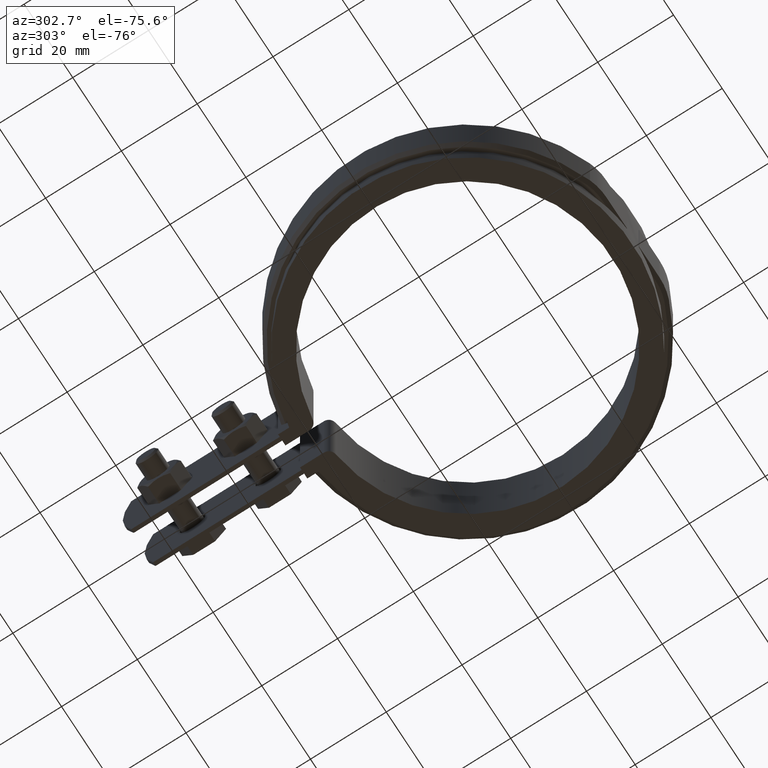
[diagram: clean part render]
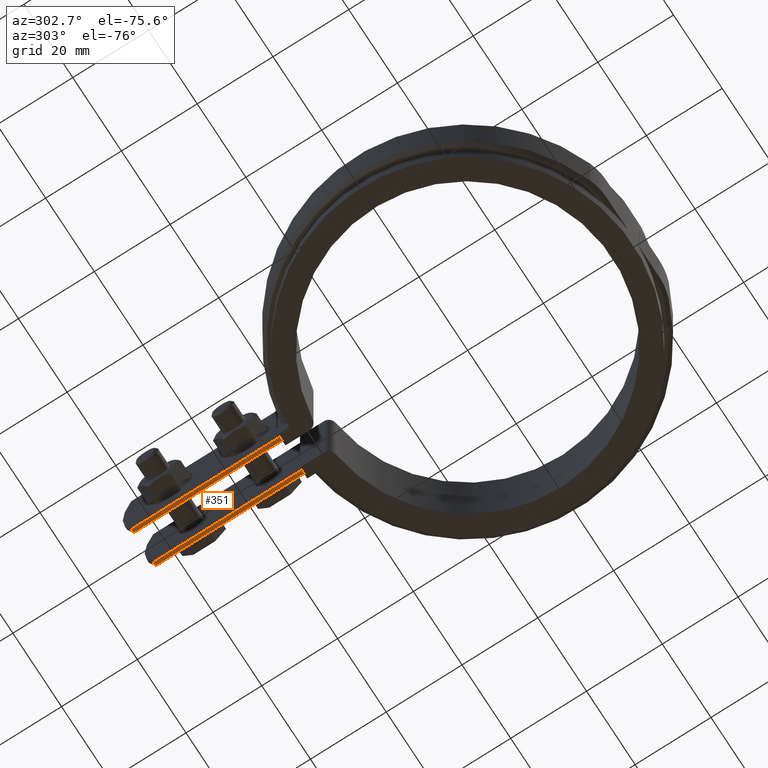
[diagram: same view with one face highlighted and labeled with its STEP entity id]
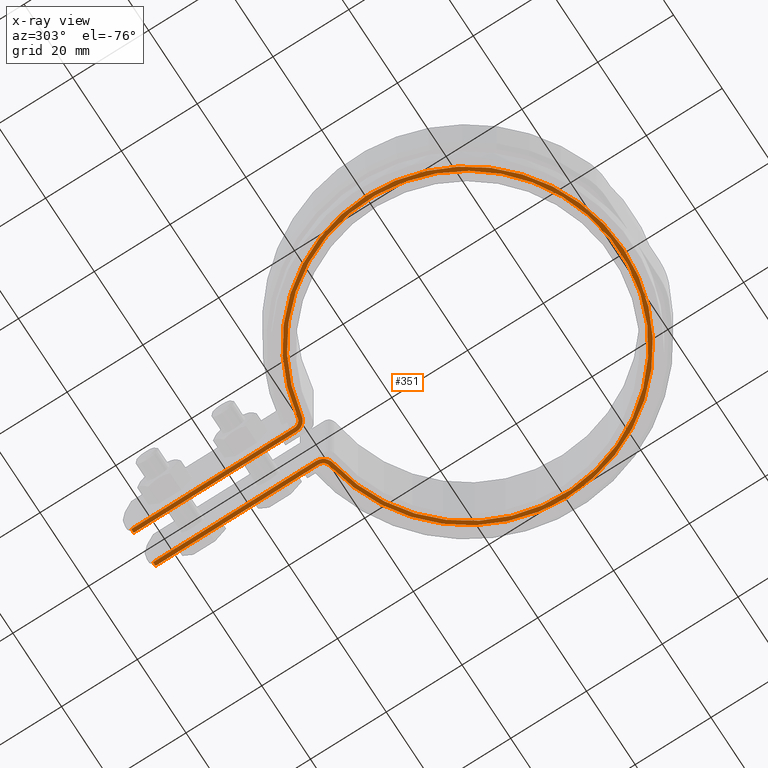
[diagram: x-ray of the same camera — body ghosted, the highlighted face saturated]
A machine part, auxiliary view. The second image highlights one B-rep face of the part: STEP entity #351.
The next image is the same camera in x-ray: the body ghosted, the highlighted face saturated — about 0% of this face is hidden behind the body in this view.
In plain terms, the highlighted planar face has unit normal (0, 0, -1).
Its self-contained STEP definition (entity closure, byte-faithful):
#351 = ADVANCED_FACE( '', ( #590 ), #591, .T. );
#590 = FACE_OUTER_BOUND( '', #1264, .T. );
#591 = PLANE( '', #1265 );
#1264 = EDGE_LOOP( '', ( #2560, #2561, #2562, #2563, #2564, #2565, #2566, #2567, #2568, #2569, #2570, #2571 ) );
#1265 = AXIS2_PLACEMENT_3D( '', #2572, #2573, #2574 );
#2560 = ORIENTED_EDGE( '', *, *, #3954, .F. );
#2561 = ORIENTED_EDGE( '', *, *, #4060, .T. );
#2562 = ORIENTED_EDGE( '', *, *, #4051, .F. );
#2563 = ORIENTED_EDGE( '', *, *, #4059, .F. );
#2564 = ORIENTED_EDGE( '', *, *, #3981, .F. );
#2565 = ORIENTED_EDGE( '', *, *, #4056, .F. );
#2566 = ORIENTED_EDGE( '', *, *, #3949, .F. );
#2567 = ORIENTED_EDGE( '', *, *, #4070, .T. );
#2568 = ORIENTED_EDGE( '', *, *, #4044, .F. );
#2569 = ORIENTED_EDGE( '', *, *, #4062, .F. );
#2570 = ORIENTED_EDGE( '', *, *, #4020, .F. );
#2571 = ORIENTED_EDGE( '', *, *, #4071, .F. );
#2572 = CARTESIAN_POINT( '', ( -7.00000000000000, 42.5784276365391, -12.5000000000000 ) );
#2573 = DIRECTION( '', ( 0.000000000000000, 0.000000000000000, -1.00000000000000 ) );
#2574 = DIRECTION( '', ( 1.00000000000000, -6.16283340149655E-017, 0.000000000000000 ) );
#3949 = EDGE_CURVE( '', #4445, #4440, #4447, .T. );
#3954 = EDGE_CURVE( '', #4455, #4457, #4458, .T. );
#3981 = EDGE_CURVE( '', #4507, #4509, #4510, .T. );
#4020 = EDGE_CURVE( '', #4583, #4585, #4586, .T. );
#4044 = EDGE_CURVE( '', #4616, #4618, #4619, .T. );
#4051 = EDGE_CURVE( '', #4630, #4632, #4633, .T. );
#4056 = EDGE_CURVE( '', #4440, #4507, #4640, .T. );
#4059 = EDGE_CURVE( '', #4509, #4630, #4643, .T. );
#4060 = EDGE_CURVE( '', #4455, #4632, #4644, .T. );
#4062 = EDGE_CURVE( '', #4585, #4616, #4646, .T. );
#4070 = EDGE_CURVE( '', #4445, #4618, #4654, .T. );
#4071 = EDGE_CURVE( '', #4457, #4583, #4655, .T. );
#4440 = VERTEX_POINT( '', #5262 );
#4445 = VERTEX_POINT( '', #5269 );
#4447 = LINE( '', #5271, #5272 );
#4455 = VERTEX_POINT( '', #5289 );
#4457 = VERTEX_POINT( '', #5291 );
#4458 = LINE( '', #5292, #5293 );
#4507 = VERTEX_POINT( '', #5508 );
#4509 = VERTEX_POINT( '', #5511 );
#4510 = CIRCLE( '', #5512, 40.1500000000000 );
#4583 = VERTEX_POINT( '', #6141 );
#4585 = VERTEX_POINT( '', #6144 );
#4586 = CIRCLE( '', #6145, 41.1500000000000 );
#4616 = VERTEX_POINT( '', #6379 );
#4618 = VERTEX_POINT( '', #6382 );
#4619 = LINE( '', #6383, #6384 );
#4630 = VERTEX_POINT( '', #6397 );
#4632 = VERTEX_POINT( '', #6400 );
#4633 = LINE( '', #6401, #6402 );
#4640 = CIRCLE( '', #6409, 3.00000000000000 );
#4643 = CIRCLE( '', #6445, 3.00000000000000 );
#4644 = LINE( '', #6446, #6447 );
#4646 = CIRCLE( '', #6450, 2.00000000000000 );
#4654 = LINE( '', #6507, #6508 );
#4655 = CIRCLE( '', #6509, 2.00000000000000 );
#5262 = CARTESIAN_POINT( '', ( 4.00000000000000, 42.5784276365391, -12.5000000000000 ) );
#5269 = CARTESIAN_POINT( '', ( 4.00000000000000, 85.5552873945263, -12.5000000000000 ) );
#5271 = CARTESIAN_POINT( '', ( 4.00000000000000, 87.7951037457368, -12.5000000000000 ) );
#5272 = VECTOR( '', #8105, 1000.00000000000 );
#5289 = CARTESIAN_POINT( '', ( -4.99999999999999, 85.5552873945263, -12.5000000000000 ) );
#5291 = CARTESIAN_POINT( '', ( -5.00000000000000, 42.5784276365391, -12.5000000000000 ) );
#5292 = CARTESIAN_POINT( '', ( -4.99999999999999, 87.7951037457368, -12.5000000000000 ) );
#5293 = VECTOR( '', #8111, 1000.00000000000 );
#5508 = CARTESIAN_POINT( '', ( 6.51332560834300, 39.6181661554356, -12.5000000000000 ) );
#5511 = CARTESIAN_POINT( '', ( -6.51332560834297, 39.6181661554356, -12.5000000000000 ) );
#5512 = AXIS2_PLACEMENT_3D( '', #8150, #8151, #8152 );
#6141 = CARTESIAN_POINT( '', ( -6.67555040556200, 40.6049199824701, -12.5000000000000 ) );
#6144 = CARTESIAN_POINT( '', ( 6.67555040556201, 40.6049199824701, -12.5000000000000 ) );
#6145 = AXIS2_PLACEMENT_3D( '', #8187, #8188, #8189 );
#6379 = CARTESIAN_POINT( '', ( 5.00000000000000, 42.5784276365391, -12.5000000000000 ) );
#6382 = CARTESIAN_POINT( '', ( 5.00000000000000, 85.5552873945263, -12.5000000000000 ) );
#6383 = CARTESIAN_POINT( '', ( 5.00000000000000, 42.5784276365391, -12.5000000000000 ) );
#6384 = VECTOR( '', #8205, 1000.00000000000 );
#6397 = CARTESIAN_POINT( '', ( -4.00000000000000, 42.5784276365391, -12.5000000000000 ) );
#6400 = CARTESIAN_POINT( '', ( -3.99999999999999, 85.5552873945263, -12.5000000000000 ) );
#6401 = CARTESIAN_POINT( '', ( -4.00000000000000, 42.5784276365391, -12.5000000000000 ) );
#6402 = VECTOR( '', #8218, 1000.00000000000 );
#6409 = AXIS2_PLACEMENT_3D( '', #8231, #8232, #8233 );
#6445 = AXIS2_PLACEMENT_3D( '', #8237, #8238, #8239 );
#6446 = CARTESIAN_POINT( '', ( -116.026895522225, 85.5552873945263, -12.5000000000000 ) );
#6447 = VECTOR( '', #8240, 1000.00000000000 );
#6450 = AXIS2_PLACEMENT_3D( '', #8242, #8243, #8244 );
#6507 = CARTESIAN_POINT( '', ( -116.026895522225, 85.5552873945263, -12.5000000000000 ) );
#6508 = VECTOR( '', #8246, 1000.00000000000 );
#6509 = AXIS2_PLACEMENT_3D( '', #8247, #8248, #8249 );
#8105 = DIRECTION( '', ( 6.16283340149655E-017, -1.00000000000000, 0.000000000000000 ) );
#8111 = DIRECTION( '', ( -6.16283340149655E-017, -1.00000000000000, 0.000000000000000 ) );
#8150 = CARTESIAN_POINT( '', ( 0.000000000000000, 0.000000000000000, -12.5000000000000 ) );
#8151 = DIRECTION( '', ( 0.000000000000000, 0.000000000000000, -1.00000000000000 ) );
#8152 = DIRECTION( '', ( 1.00000000000000, -6.16283340149655E-017, 0.000000000000000 ) );
#8187 = CARTESIAN_POINT( '', ( 0.000000000000000, 0.000000000000000, -12.5000000000000 ) );
#8188 = DIRECTION( '', ( 0.000000000000000, 0.000000000000000, 1.00000000000000 ) );
#8189 = DIRECTION( '', ( 1.00000000000000, -6.16283340149655E-017, 0.000000000000000 ) );
#8205 = DIRECTION( '', ( -6.16283340149655E-017, 1.00000000000000, 0.000000000000000 ) );
#8218 = DIRECTION( '', ( 6.16283340149655E-017, 1.00000000000000, 0.000000000000000 ) );
#8231 = CARTESIAN_POINT( '', ( 7.00000000000000, 42.5784276365391, -12.5000000000000 ) );
#8232 = DIRECTION( '', ( 0.000000000000000, 0.000000000000000, 1.00000000000000 ) );
#8233 = DIRECTION( '', ( -1.00000000000000, 6.16283340149655E-017, 0.000000000000000 ) );
#8237 = CARTESIAN_POINT( '', ( -7.00000000000000, 42.5784276365391, -12.5000000000000 ) );
#8238 = DIRECTION( '', ( 0.000000000000000, 0.000000000000000, 1.00000000000000 ) );
#8239 = DIRECTION( '', ( 1.00000000000000, -6.16283340149655E-017, 0.000000000000000 ) );
#8240 = DIRECTION( '', ( 1.00000000000000, -6.16283340149655E-017, 0.000000000000000 ) );
#8242 = CARTESIAN_POINT( '', ( 7.00000000000000, 42.5784276365391, -12.5000000000000 ) );
#8243 = DIRECTION( '', ( 0.000000000000000, 0.000000000000000, -1.00000000000000 ) );
#8244 = DIRECTION( '', ( -1.00000000000000, 6.16283340149655E-017, 0.000000000000000 ) );
#8246 = DIRECTION( '', ( 1.00000000000000, -6.16283340149655E-017, 0.000000000000000 ) );
#8247 = CARTESIAN_POINT( '', ( -7.00000000000000, 42.5784276365391, -12.5000000000000 ) );
#8248 = DIRECTION( '', ( 0.000000000000000, 0.000000000000000, -1.00000000000000 ) );
#8249 = DIRECTION( '', ( 1.00000000000000, -6.16283340149655E-017, 0.000000000000000 ) );